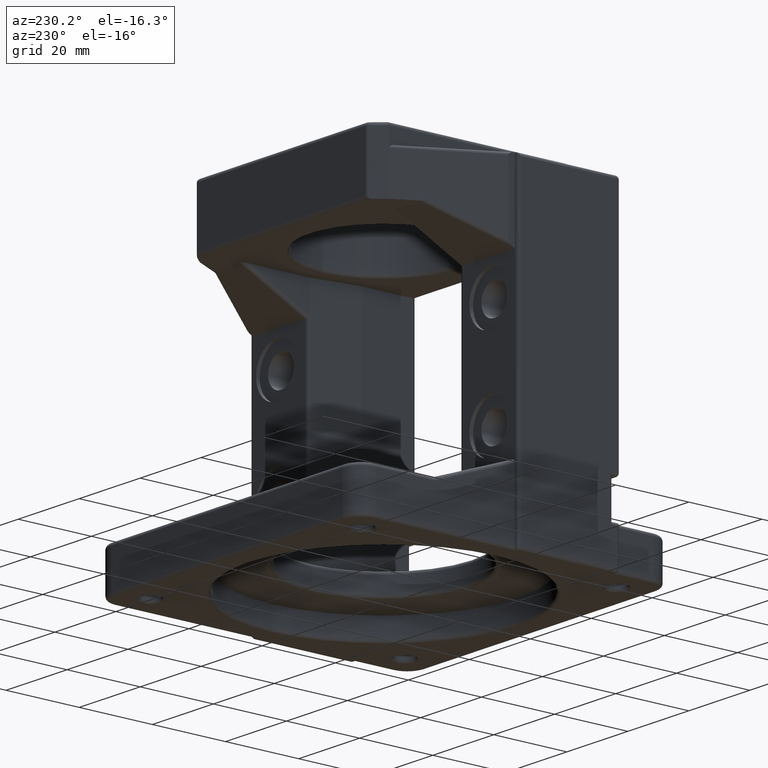
[diagram: clean part render]
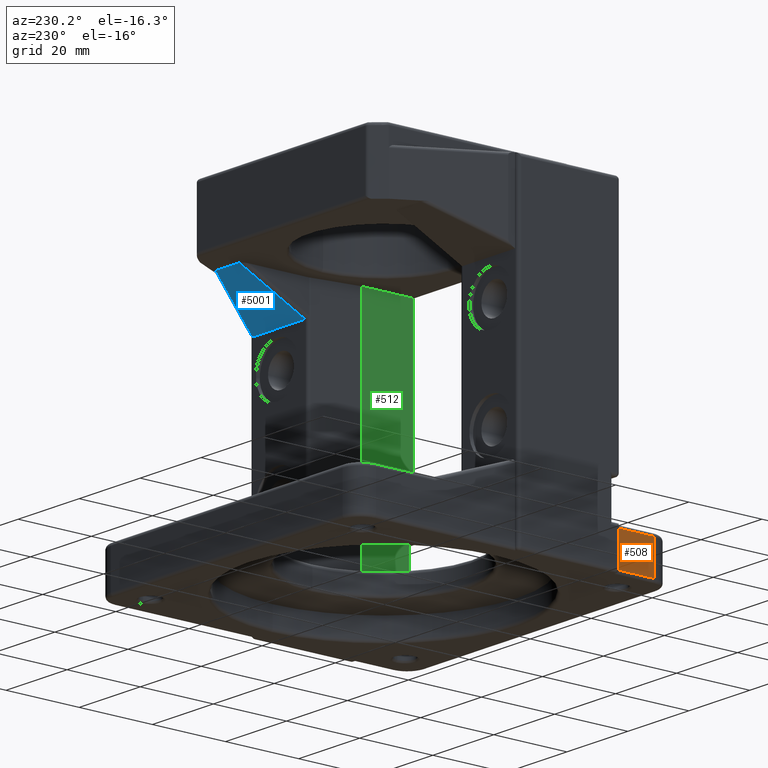
[diagram: same view with three faces highlighted in distinct colors, each labeled with its STEP entity id]
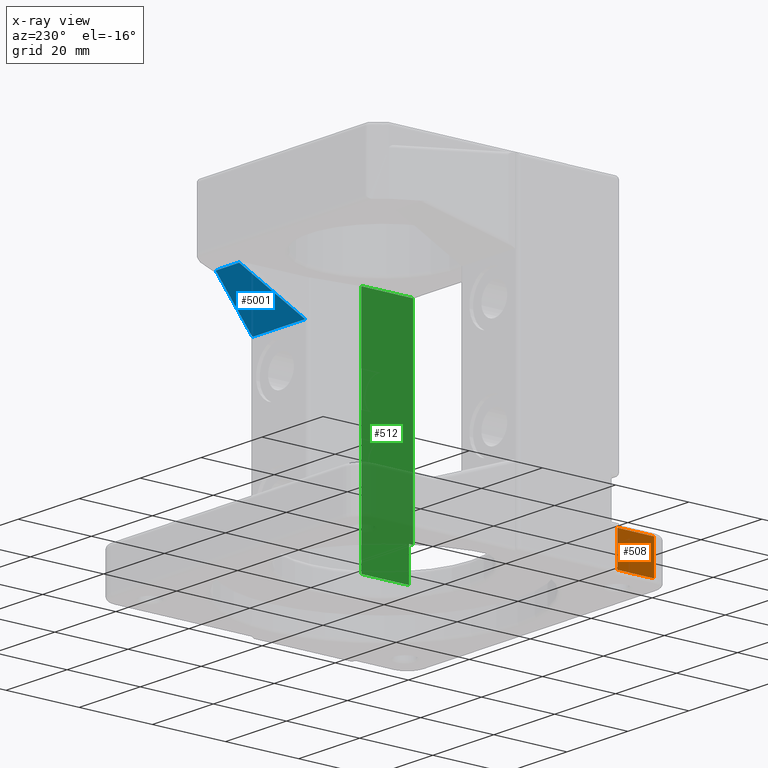
[diagram: x-ray of the same camera — body ghosted, the three highlighted faces saturated]
A machine part, auxiliary view with three faces highlighted in distinct colors.
The next image is the same camera in x-ray (body ghosted, the three faces saturated) — at least one of them is partly hidden behind the body in this view.
Their STEP definitions:

[orange] entity #508 — the highlighted planar face has unit normal (1, 0, -0).
#85 = DIRECTION ( 'NONE',  ( 1.000000000000000000, 8.068481283613057000E-017, -0.0000000000000000000 ) ) ;
#86 = CARTESIAN_POINT ( 'NONE',  ( -43.00000000000000000, 43.00000000000000000, 6.000000000000000000 ) ) ;
#87 = PLANE ( 'NONE',  #4914 ) ;
#91 = DIRECTION ( 'NONE',  ( -8.068481283613057000E-017, 1.000000000000000000, 0.0000000000000000000 ) ) ;
#508 = ADVANCED_FACE ( 'NONE', ( #6170 ), #87, .F. ) ;
#613 = CARTESIAN_POINT ( 'NONE',  ( -43.00000000000000000, -37.99999999999998600, 6.000000000000000000 ) ) ;
#616 = DIRECTION ( 'NONE',  ( -8.068481283613057000E-017, 1.000000000000000000, 0.0000000000000000000 ) ) ;
#620 = CARTESIAN_POINT ( 'NONE',  ( -43.00000000000000000, 43.00000000000000000, -5.100000000000000500 ) ) ;
#627 = CARTESIAN_POINT ( 'NONE',  ( -43.00000000000000700, -27.99999999999997500, -6.000000000000003600 ) ) ;
#628 = DIRECTION ( 'NONE',  ( 8.068481283613057000E-017, -1.000000000000000000, 0.0000000000000000000 ) ) ;
#630 = DIRECTION ( 'NONE',  ( 0.0000000000000000000, 3.154042683594194100E-016, -1.000000000000000000 ) ) ;
#631 = DIRECTION ( 'NONE',  ( 0.0000000000000000000, -0.0000000000000000000, 1.000000000000000000 ) ) ;
#634 = CARTESIAN_POINT ( 'NONE',  ( -43.00000000000000000, 43.00000000000000000, 4.099999999999999600 ) ) ;
#3018 = VERTEX_POINT ( 'NONE', #3117 ) ;
#3020 = VERTEX_POINT ( 'NONE', #3265 ) ;
#3022 = VERTEX_POINT ( 'NONE', #3157 ) ;
#3024 = VERTEX_POINT ( 'NONE', #3197 ) ;
#3117 = CARTESIAN_POINT ( 'NONE',  ( -43.00000000000000700, -27.99999999999997500, -5.100000000000000500 ) ) ;
#3157 = CARTESIAN_POINT ( 'NONE',  ( -43.00000000000000000, -37.99999999999998600, 4.099999999999999600 ) ) ;
#3197 = CARTESIAN_POINT ( 'NONE',  ( -43.00000000000000000, -37.99999999999998600, -5.100000000000000500 ) ) ;
#3206 = ORIENTED_EDGE ( 'NONE', *, *, #3950, .T. ) ;
#3207 = ORIENTED_EDGE ( 'NONE', *, *, #3951, .T. ) ;
#3209 = ORIENTED_EDGE ( 'NONE', *, *, #3949, .T. ) ;
#3211 = ORIENTED_EDGE ( 'NONE', *, *, #3952, .T. ) ;
#3265 = CARTESIAN_POINT ( 'NONE',  ( -43.00000000000000700, -27.99999999999997900, 4.099999999999999600 ) ) ;
#3373 = EDGE_LOOP ( 'NONE', ( #3206, #3209, #3207, #3211 ) ) ;
#3949 = EDGE_CURVE ( 'NONE', #3022, #3020, #4486, .T. ) ;
#3950 = EDGE_CURVE ( 'NONE', #3024, #3022, #4487, .T. ) ;
#3951 = EDGE_CURVE ( 'NONE', #3020, #3018, #4488, .T. ) ;
#3952 = EDGE_CURVE ( 'NONE', #3018, #3024, #4489, .T. ) ;
#4486 = LINE ( 'NONE', #634, #6472 ) ;
#4487 = LINE ( 'NONE', #613, #6473 ) ;
#4488 = LINE ( 'NONE', #627, #6474 ) ;
#4489 = LINE ( 'NONE', #620, #6475 ) ;
#4914 = AXIS2_PLACEMENT_3D ( 'NONE', #86, #85, #91 ) ;
#6170 = FACE_OUTER_BOUND ( 'NONE', #3373, .T. ) ;
#6472 = VECTOR ( 'NONE', #616, 1000.000000000000000 ) ;
#6473 = VECTOR ( 'NONE', #631, 1000.000000000000000 ) ;
#6474 = VECTOR ( 'NONE', #630, 1000.000000000000000 ) ;
#6475 = VECTOR ( 'NONE', #628, 1000.000000000000000 ) ;

[blue] entity #5001 — the highlighted planar face has unit normal (0, -0.4472, 0.8944).
#265 = VECTOR ( 'NONE', #2691, 1000.000000000000000 ) ;
#282 = VECTOR ( 'NONE', #2731, 1000.000000000000100 ) ;
#340 = VECTOR ( 'NONE', #2259, 1000.000000000000000 ) ;
#347 = VECTOR ( 'NONE', #2275, 1000.000000000000100 ) ;
#353 = VECTOR ( 'NONE', #2288, 1000.000000000000100 ) ;
#781 = CARTESIAN_POINT ( 'NONE',  ( 25.90000000000001300, 18.00000000000000700, 69.00000000000000000 ) ) ;
#817 = CARTESIAN_POINT ( 'NONE',  ( 33.63572262209667900, 18.00000000000000700, 69.00000000000000000 ) ) ;
#840 = CARTESIAN_POINT ( 'NONE',  ( 25.90000000000001300, 6.938893903907228400E-015, 60.00000000000000000 ) ) ;
#844 = CARTESIAN_POINT ( 'NONE',  ( 43.00000000000000000, 0.3666455080287497900, 60.18332275401437000 ) ) ;
#1047 = VERTEX_POINT ( 'NONE', #5627 ) ;
#1094 = VERTEX_POINT ( 'NONE', #781 ) ;
#1120 = VERTEX_POINT ( 'NONE', #817 ) ;
#1122 = VERTEX_POINT ( 'NONE', #840 ) ;
#1187 = VERTEX_POINT ( 'NONE', #844 ) ;
#2258 = CARTESIAN_POINT ( 'NONE',  ( -42.99999999999999300, 18.00000000000000000, 69.00000000000000000 ) ) ;
#2259 = DIRECTION ( 'NONE',  ( 1.000000000000000000, 8.673617379884035500E-017, -0.0000000000000000000 ) ) ;
#2274 = CARTESIAN_POINT ( 'NONE',  ( 35.35952996295382900, 14.75399342730681200, 67.37699671365341200 ) ) ;
#2275 = DIRECTION ( 'NONE',  ( 0.4290493301010432900, -0.8079191406767614000, -0.4039595703383810400 ) ) ;
#2287 = CARTESIAN_POINT ( 'NONE',  ( 25.90000000000000900, 18.00000000000000400, 69.00000000000000000 ) ) ;
#2288 = DIRECTION ( 'NONE',  ( -7.757919228897726000E-017, 0.8944271909999156300, 0.4472135954999582600 ) ) ;
#2521 = PLANE ( 'NONE',  #6307 ) ;
#2522 = CARTESIAN_POINT ( 'NONE',  ( 43.00000000000000000, 18.00000000000000700, 69.00000000000000000 ) ) ;
#2523 = DIRECTION ( 'NONE',  ( 3.878959614448867300E-017, -0.4472135954999583200, 0.8944271909999157400 ) ) ;
#2524 = DIRECTION ( 'NONE',  ( 0.0000000000000000000, -0.8944271909999156300, -0.4472135954999582600 ) ) ;
#2690 = CARTESIAN_POINT ( 'NONE',  ( 43.00000000000000000, 6.938893903907228400E-015, 60.00000000000000000 ) ) ;
#2691 = DIRECTION ( 'NONE',  ( -1.000000000000000000, -0.0000000000000000000, 4.336808689942022100E-017 ) ) ;
#2730 = CARTESIAN_POINT ( 'NONE',  ( 43.00000000000000000, 18.00000000000000700, 69.00000000000000000 ) ) ;
#2731 = DIRECTION ( 'NONE',  ( 0.0000000000000000000, -0.8944271909999156300, -0.4472135954999582600 ) ) ;
#2840 = LINE ( 'NONE', #2730, #282 ) ;
#3313 = EDGE_LOOP ( 'NONE', ( #6061, #6059, #6060, #6058, #6057 ) ) ;
#4640 = LINE ( 'NONE', #2258, #340 ) ;
#4643 = LINE ( 'NONE', #2274, #347 ) ;
#4646 = LINE ( 'NONE', #2287, #353 ) ;
#4668 = FACE_OUTER_BOUND ( 'NONE', #3313, .T. ) ;
#4713 = LINE ( 'NONE', #2690, #265 ) ;
#4928 = EDGE_CURVE ( 'NONE', #1094, #1120, #4640, .T. ) ;
#4934 = EDGE_CURVE ( 'NONE', #1120, #1187, #4643, .T. ) ;
#4939 = EDGE_CURVE ( 'NONE', #1122, #1094, #4646, .T. ) ;
#5001 = ADVANCED_FACE ( 'NONE', ( #4668 ), #2521, .F. ) ;
#5068 = EDGE_CURVE ( 'NONE', #1047, #1122, #4713, .T. ) ;
#5083 = EDGE_CURVE ( 'NONE', #1187, #1047, #2840, .T. ) ;
#5627 = CARTESIAN_POINT ( 'NONE',  ( 43.00000000000000000, 4.007809410015381300E-015, 60.00000000000002100 ) ) ;
#6057 = ORIENTED_EDGE ( 'NONE', *, *, #5083, .T. ) ;
#6058 = ORIENTED_EDGE ( 'NONE', *, *, #4934, .T. ) ;
#6059 = ORIENTED_EDGE ( 'NONE', *, *, #4939, .T. ) ;
#6060 = ORIENTED_EDGE ( 'NONE', *, *, #4928, .T. ) ;
#6061 = ORIENTED_EDGE ( 'NONE', *, *, #5068, .T. ) ;
#6307 = AXIS2_PLACEMENT_3D ( 'NONE', #2522, #2523, #2524 ) ;

[green] entity #512 — the highlighted planar face has unit normal (-1, 0, 0).
#97 = CARTESIAN_POINT ( 'NONE',  ( 22.99999999999999600, -43.00000000000000000, 81.00000000000000000 ) ) ;
#98 = PLANE ( 'NONE',  #4885 ) ;
#104 = DIRECTION ( 'NONE',  ( 0.0000000000000000000, 0.0000000000000000000, 1.000000000000000000 ) ) ;
#105 = DIRECTION ( 'NONE',  ( -1.000000000000000000, 0.0000000000000000000, 0.0000000000000000000 ) ) ;
#338 = VECTOR ( 'NONE', #2257, 1000.000000000000000 ) ;
#512 = ADVANCED_FACE ( 'NONE', ( #6177 ), #98, .T. ) ;
#679 = CARTESIAN_POINT ( 'NONE',  ( 22.99999999999999600, -12.99999999999999800, 69.00000000000000000 ) ) ;
#900 = CARTESIAN_POINT ( 'NONE',  ( 22.99999999999999600, -27.09999999999998400, 69.00000000000000000 ) ) ;
#1195 = VERTEX_POINT ( 'NONE', #900 ) ;
#1212 = VERTEX_POINT ( 'NONE', #679 ) ;
#1367 = VECTOR ( 'NONE', #1663, 1000.000000000000000 ) ;
#1368 = VECTOR ( 'NONE', #1665, 1000.000000000000000 ) ;
#1370 = VECTOR ( 'NONE', #1667, 1000.000000000000000 ) ;
#1371 = VECTOR ( 'NONE', #1669, 1000.000000000000000 ) ;
#1662 = CARTESIAN_POINT ( 'NONE',  ( 22.99999999999999600, -12.99999999999999800, 81.00000000000000000 ) ) ;
#1663 = DIRECTION ( 'NONE',  ( -0.0000000000000000000, -0.0000000000000000000, -1.000000000000000000 ) ) ;
#1664 = CARTESIAN_POINT ( 'NONE',  ( 22.99999999999999600, -27.09999999999998400, 69.00000000000000000 ) ) ;
#1665 = DIRECTION ( 'NONE',  ( -0.0000000000000000000, 1.850371707708594300E-016, 1.000000000000000000 ) ) ;
#1666 = CARTESIAN_POINT ( 'NONE',  ( 22.99999999999999600, -43.00000000000000000, 15.00000000000000000 ) ) ;
#1667 = DIRECTION ( 'NONE',  ( 0.0000000000000000000, 1.000000000000000000, 0.0000000000000000000 ) ) ;
#1668 = CARTESIAN_POINT ( 'NONE',  ( 22.99999999999999600, -25.99999999999999300, 81.00000000000000000 ) ) ;
#1669 = DIRECTION ( 'NONE',  ( 0.0000000000000000000, 0.0000000000000000000, -1.000000000000000000 ) ) ;
#2256 = CARTESIAN_POINT ( 'NONE',  ( 22.99999999999999600, -43.00000000000000000, 69.00000000000000000 ) ) ;
#2257 = DIRECTION ( 'NONE',  ( 0.0000000000000000000, -1.000000000000000000, 0.0000000000000000000 ) ) ;
#2961 = CARTESIAN_POINT ( 'NONE',  ( 22.99999999999999600, -27.09999999999999400, 15.00000000000000000 ) ) ;
#2993 = VERTEX_POINT ( 'NONE', #3099 ) ;
#3003 = VERTEX_POINT ( 'NONE', #3193 ) ;
#3058 = VERTEX_POINT ( 'NONE', #2961 ) ;
#3070 = CARTESIAN_POINT ( 'NONE',  ( 22.99999999999999300, -25.99999999999998600, 15.00000000000000000 ) ) ;
#3099 = CARTESIAN_POINT ( 'NONE',  ( 22.99999999999999300, -12.99999999999999800, 6.000000000000000000 ) ) ;
#3106 = VERTEX_POINT ( 'NONE', #3070 ) ;
#3193 = CARTESIAN_POINT ( 'NONE',  ( 22.99999999999999600, -25.99999999999999300, 6.000000000000005300 ) ) ;
#3679 = EDGE_LOOP ( 'NONE', ( #3741, #3743, #3742, #3745, #3744, #3746 ) ) ;
#3741 = ORIENTED_EDGE ( 'NONE', *, *, #4034, .F. ) ;
#3742 = ORIENTED_EDGE ( 'NONE', *, *, #4927, .F. ) ;
#3743 = ORIENTED_EDGE ( 'NONE', *, *, #4033, .T. ) ;
#3744 = ORIENTED_EDGE ( 'NONE', *, *, #3920, .F. ) ;
#3745 = ORIENTED_EDGE ( 'NONE', *, *, #4032, .T. ) ;
#3746 = ORIENTED_EDGE ( 'NONE', *, *, #4035, .F. ) ;
#3920 = EDGE_CURVE ( 'NONE', #3003, #2993, #4471, .T. ) ;
#4032 = EDGE_CURVE ( 'NONE', #1212, #2993, #4549, .T. ) ;
#4033 = EDGE_CURVE ( 'NONE', #3058, #1195, #4550, .T. ) ;
#4034 = EDGE_CURVE ( 'NONE', #3058, #3106, #4551, .T. ) ;
#4035 = EDGE_CURVE ( 'NONE', #3106, #3003, #4552, .T. ) ;
#4471 = LINE ( 'NONE', #6388, #7374 ) ;
#4549 = LINE ( 'NONE', #1662, #1367 ) ;
#4550 = LINE ( 'NONE', #1664, #1368 ) ;
#4551 = LINE ( 'NONE', #1666, #1370 ) ;
#4552 = LINE ( 'NONE', #1668, #1371 ) ;
#4639 = LINE ( 'NONE', #2256, #338 ) ;
#4885 = AXIS2_PLACEMENT_3D ( 'NONE', #97, #105, #104 ) ;
#4927 = EDGE_CURVE ( 'NONE', #1212, #1195, #4639, .T. ) ;
#6177 = FACE_OUTER_BOUND ( 'NONE', #3679, .T. ) ;
#6388 = CARTESIAN_POINT ( 'NONE',  ( 22.99999999999999600, -43.00000000000000000, 6.000000000000000000 ) ) ;
#6389 = DIRECTION ( 'NONE',  ( 0.0000000000000000000, 1.000000000000000000, 0.0000000000000000000 ) ) ;
#7374 = VECTOR ( 'NONE', #6389, 1000.000000000000000 ) ;